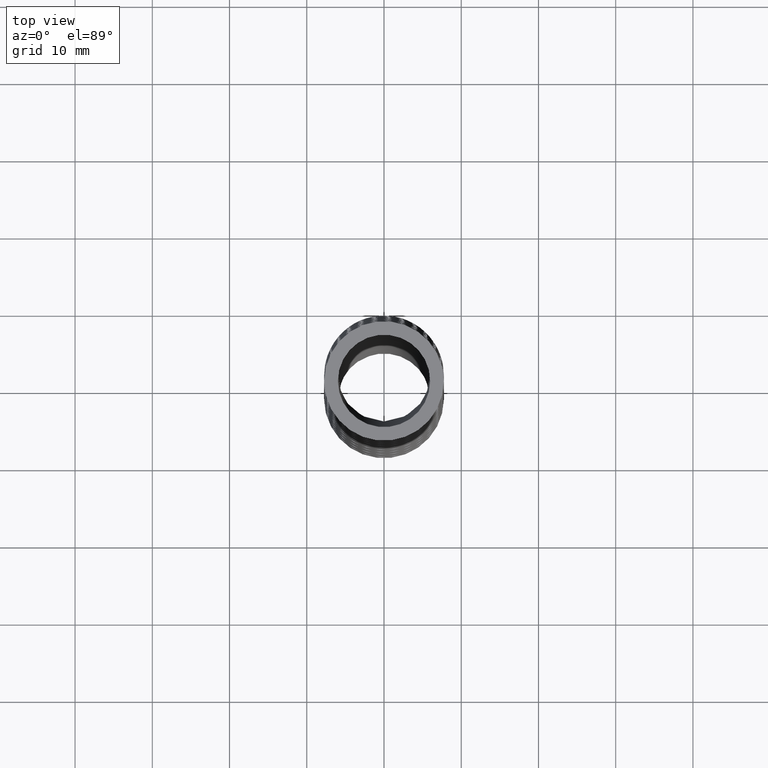
[diagram: clean part render]
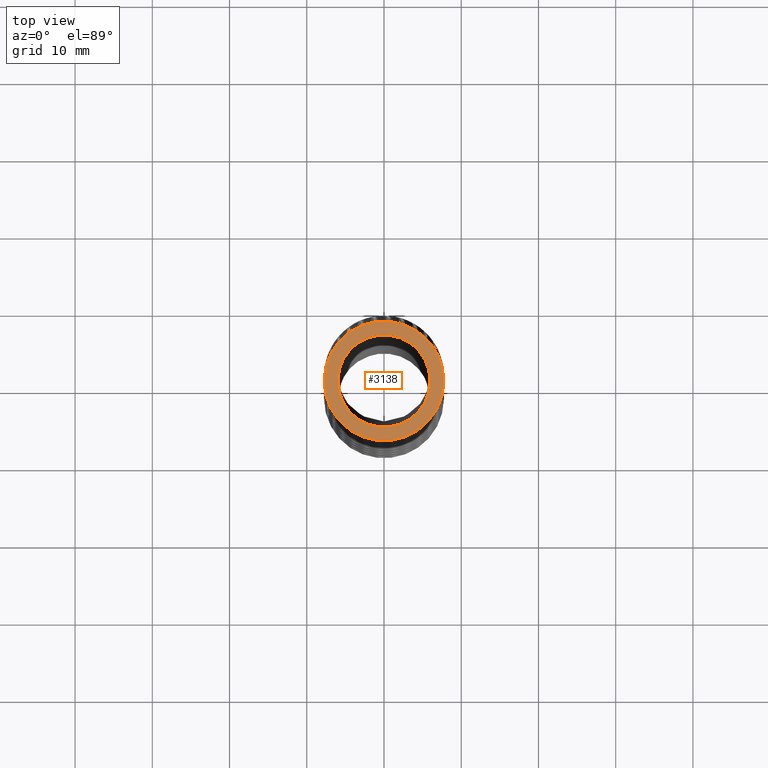
[diagram: same view with one face highlighted and labeled with its STEP entity id]
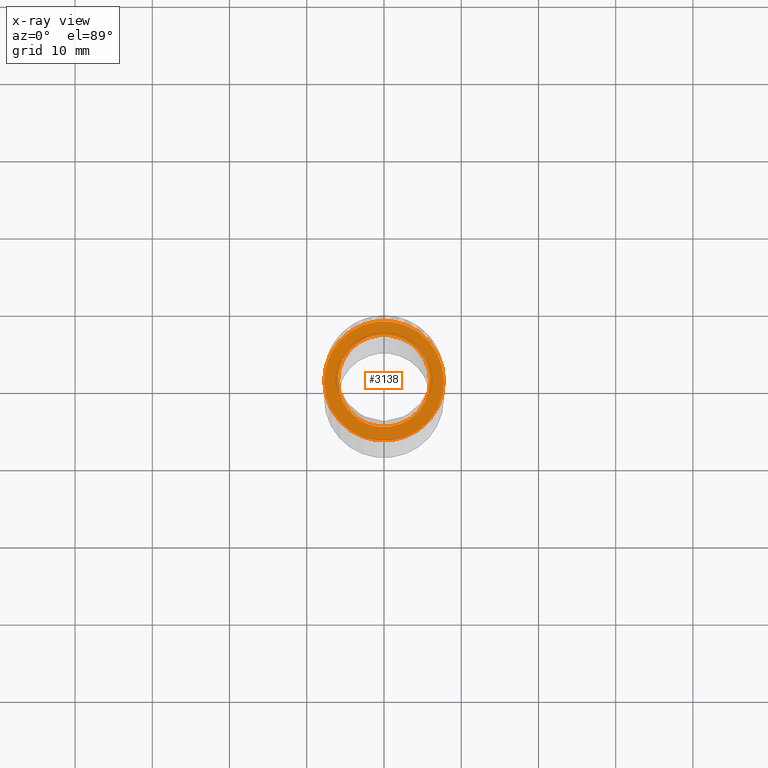
[diagram: x-ray of the same camera — body ghosted, the highlighted face saturated]
A machine part, top view. The second image highlights one B-rep face of the part: STEP entity #3138.
The next image is the same camera in x-ray: the body ghosted, the highlighted face saturated — about 0% of this face is hidden behind the body in this view.
In plain terms, the highlighted planar face has unit normal (0, 0, 1).
Its self-contained STEP definition (entity closure, byte-faithful):
#1577 = AXIS2_PLACEMENT_3D ( 'NONE', #1585, #1658, #1657 ) ;
#1578 = CIRCLE ( 'NONE', #1577, 0.2349999999999999900 ) ;
#1585 = CARTESIAN_POINT ( 'NONE',  ( 0.0000000000000000000, 0.0000000000000000000, 0.0000000000000000000 ) ) ;
#1657 = DIRECTION ( 'NONE',  ( 1.000000000000000000, 0.0000000000000000000, 0.0000000000000000000 ) ) ;
#1658 = DIRECTION ( 'NONE',  ( 0.0000000000000000000, 0.0000000000000000000, 1.000000000000000000 ) ) ;
#2020 = CARTESIAN_POINT ( 'NONE',  ( 0.2349999999999999900, 0.0000000000000000000, 0.0000000000000000000 ) ) ;
#2373 = CARTESIAN_POINT ( 'NONE',  ( 0.3050000000000000500, 0.0000000000000000000, 0.0000000000000000000 ) ) ;
#2414 = CARTESIAN_POINT ( 'NONE',  ( -0.2349999999999999900, 2.877919977996279800E-017, 0.0000000000000000000 ) ) ;
#2923 = DIRECTION ( 'NONE',  ( 1.000000000000000000, 0.0000000000000000000, 0.0000000000000000000 ) ) ;
#2924 = DIRECTION ( 'NONE',  ( 0.0000000000000000000, 0.0000000000000000000, 1.000000000000000000 ) ) ;
#2925 = CARTESIAN_POINT ( 'NONE',  ( 0.0000000000000000000, 0.0000000000000000000, 0.0000000000000000000 ) ) ;
#2926 = AXIS2_PLACEMENT_3D ( 'NONE', #2925, #2924, #2923 ) ;
#2927 = CIRCLE ( 'NONE', #2926, 0.3050000000000000500 ) ;
#2933 = CARTESIAN_POINT ( 'NONE',  ( -0.3050000000000000500, 3.735172737399427600E-017, 0.0000000000000000000 ) ) ;
#2990 = EDGE_CURVE ( 'NONE', #14079, #14364, #7224, .T. ) ;
#3029 = EDGE_LOOP ( 'NONE', ( #3117, #3118 ) ) ;
#3117 = ORIENTED_EDGE ( 'NONE', *, *, #2990, .T. ) ;
#3118 = ORIENTED_EDGE ( 'NONE', *, *, #14365, .T. ) ;
#3134 = ORIENTED_EDGE ( 'NONE', *, *, #13766, .F. ) ;
#3135 = EDGE_LOOP ( 'NONE', ( #3134, #3137 ) ) ;
#3136 = EDGE_CURVE ( 'NONE', #14087, #13815, #7290, .T. ) ;
#3137 = ORIENTED_EDGE ( 'NONE', *, *, #3136, .F. ) ;
#3138 = ADVANCED_FACE ( 'NONE', ( #7286, #7352 ), #7376, .T. ) ;
#7220 = DIRECTION ( 'NONE',  ( 1.000000000000000000, 0.0000000000000000000, 0.0000000000000000000 ) ) ;
#7221 = DIRECTION ( 'NONE',  ( 0.0000000000000000000, 0.0000000000000000000, 1.000000000000000000 ) ) ;
#7222 = CARTESIAN_POINT ( 'NONE',  ( 0.0000000000000000000, 0.0000000000000000000, 0.0000000000000000000 ) ) ;
#7223 = AXIS2_PLACEMENT_3D ( 'NONE', #7222, #7221, #7220 ) ;
#7224 = CIRCLE ( 'NONE', #7223, 0.3050000000000000500 ) ;
#7286 = FACE_BOUND ( 'NONE', #3135, .T. ) ;
#7287 = DIRECTION ( 'NONE',  ( 1.000000000000000000, 0.0000000000000000000, 0.0000000000000000000 ) ) ;
#7288 = DIRECTION ( 'NONE',  ( 0.0000000000000000000, 0.0000000000000000000, 1.000000000000000000 ) ) ;
#7289 = AXIS2_PLACEMENT_3D ( 'NONE', #7336, #7288, #7287 ) ;
#7290 = CIRCLE ( 'NONE', #7289, 0.2349999999999999900 ) ;
#7336 = CARTESIAN_POINT ( 'NONE',  ( 0.0000000000000000000, 0.0000000000000000000, 0.0000000000000000000 ) ) ;
#7352 = FACE_OUTER_BOUND ( 'NONE', #3029, .T. ) ;
#7372 = DIRECTION ( 'NONE',  ( 1.000000000000000000, 0.0000000000000000000, 0.0000000000000000000 ) ) ;
#7373 = DIRECTION ( 'NONE',  ( 0.0000000000000000000, 0.0000000000000000000, 1.000000000000000000 ) ) ;
#7374 = CARTESIAN_POINT ( 'NONE',  ( 0.0000000000000000000, 0.0000000000000000000, 0.0000000000000000000 ) ) ;
#7375 = AXIS2_PLACEMENT_3D ( 'NONE', #7374, #7373, #7372 ) ;
#7376 = PLANE ( 'NONE',  #7375 ) ;
#13766 = EDGE_CURVE ( 'NONE', #13815, #14087, #1578, .T. ) ;
#13815 = VERTEX_POINT ( 'NONE', #2020 ) ;
#14079 = VERTEX_POINT ( 'NONE', #2373 ) ;
#14087 = VERTEX_POINT ( 'NONE', #2414 ) ;
#14364 = VERTEX_POINT ( 'NONE', #2933 ) ;
#14365 = EDGE_CURVE ( 'NONE', #14364, #14079, #2927, .T. ) ;